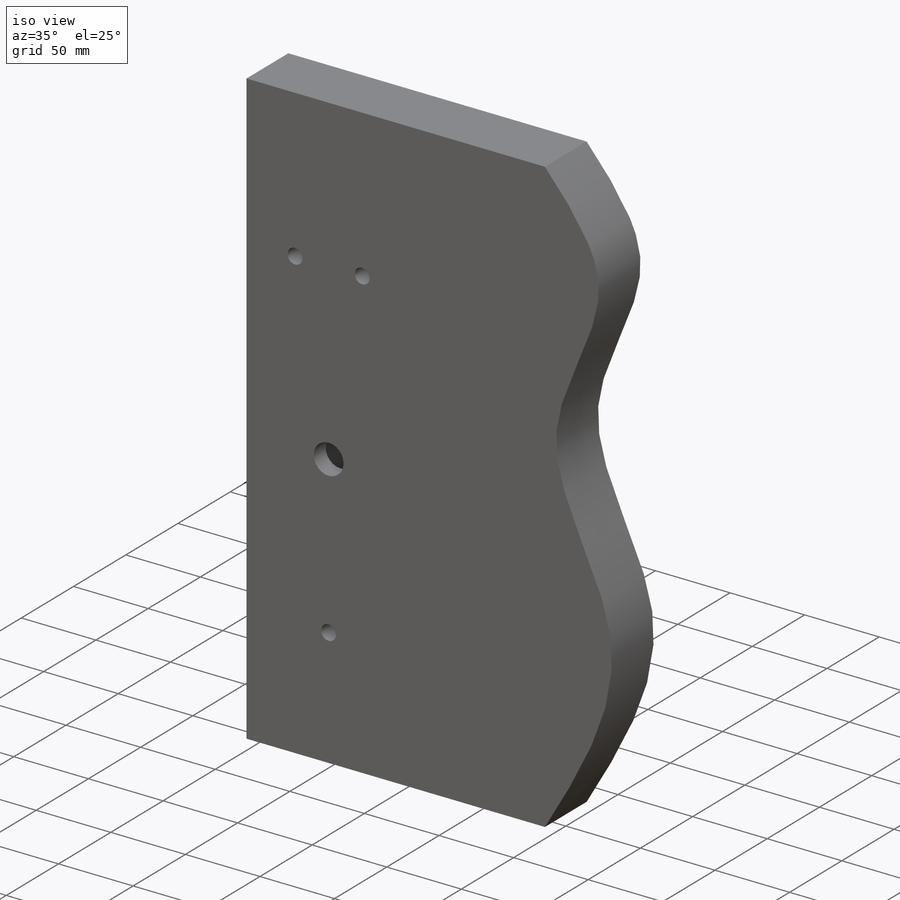
[diagram: iso view]
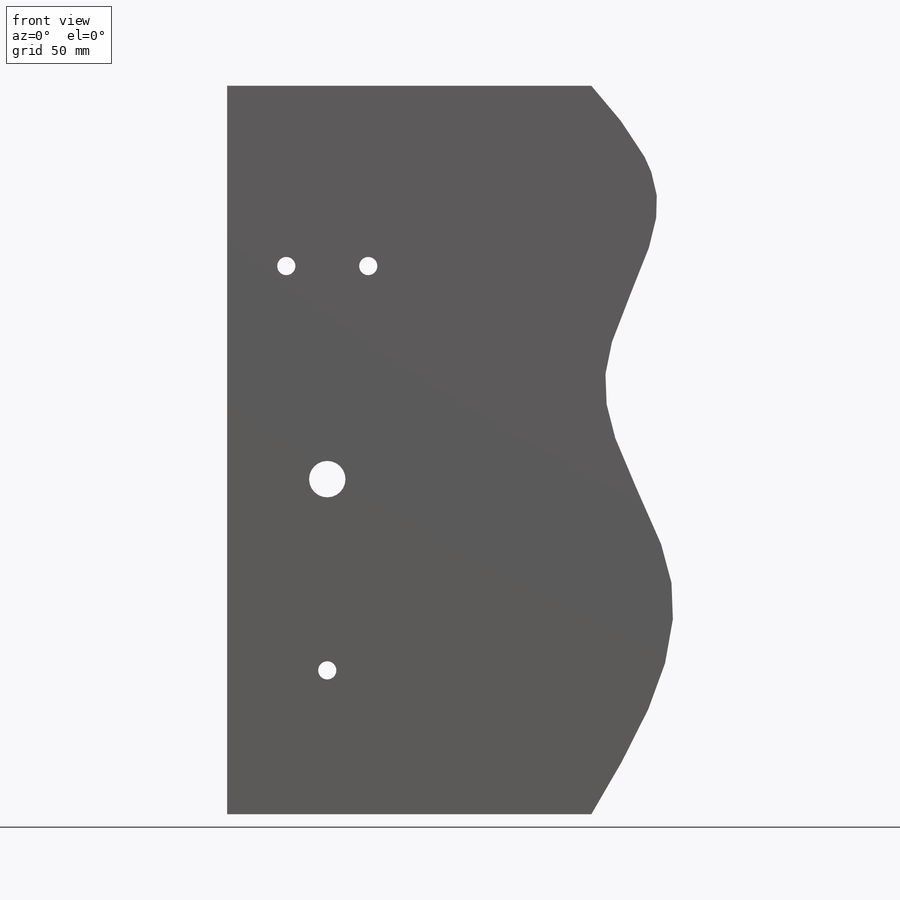
[diagram: front view]
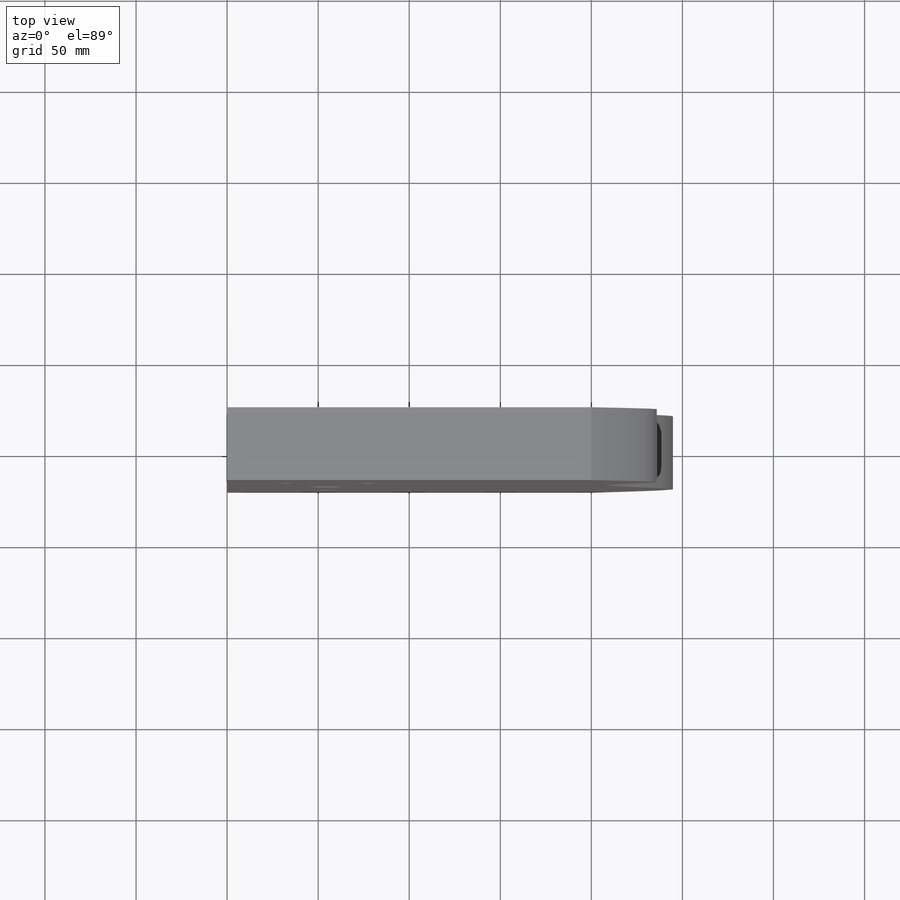
[diagram: top view]
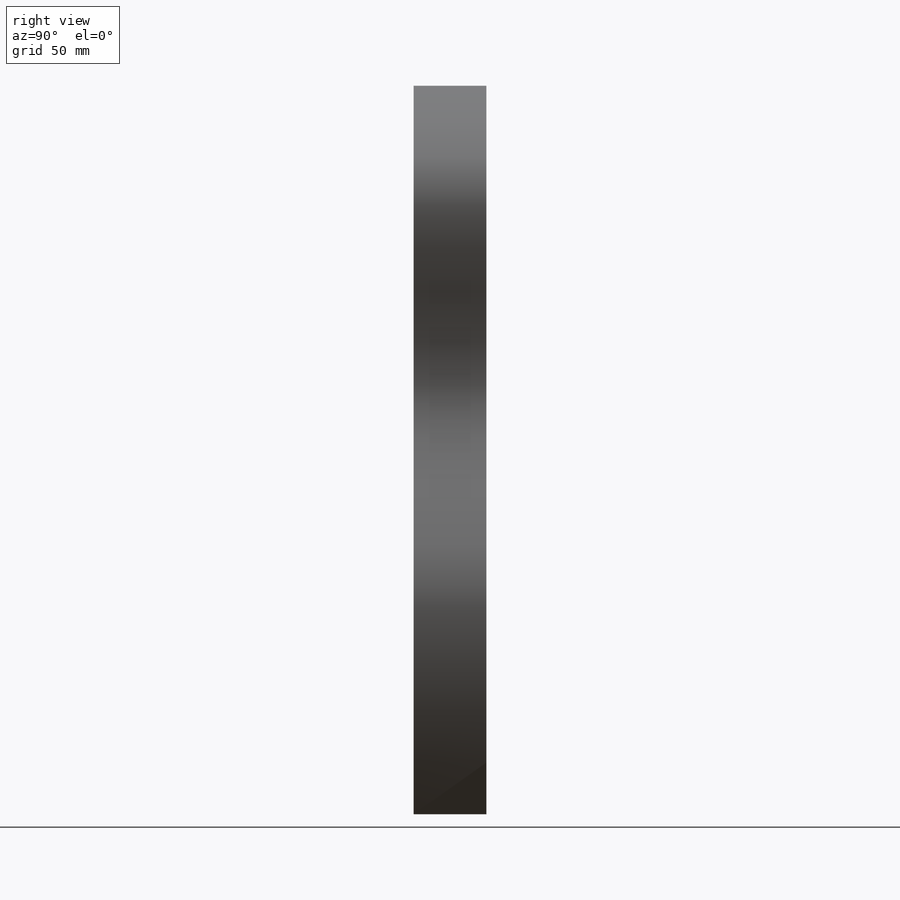
[diagram: right view]
SOLIDWORKS PART (.sldprt)
format: sldprt  version: not decoded by parser v0  size: 563,712 bytes
history: native  units: mm
features: sketch x4, plane x3, cut_extrude x3, material x1, extrude x1 (+12 scaffold rows collapsed)
feature tree (24):
  scaffold x12  (default folders/planes/origin — collapsed)
  material  "Chêne"
  plane  "Face"
  plane  "Dessus"
  plane  "Droite"
  sketch  "Esquisse1"  dims[D1=200.0mm D2=400.0mm]
  extrude  "Extrusion1"  Depth=40mm
  sketch  "Esquisse2"  dims[D1=230.0mm D2=22.0mm D3=120.0mm]
  cut_extrude  "Enlèv. mat.-Extru.1"  Depth=3mm
  sketch  "Esquisse3"  dims[c1.D1=163.0mm c1.D2=77.0mm c1.D3=77.0mm c1.D4=7.0mm c1.D5=7.0mm c1.D6=7.0mm c1.D7=7.0mm c1.D8=3.0mm c2.D2=118.0mm c2.D1=77.0mm c2.D3=77.0mm c2.D4=163.0mm c2.D5=163.0mm c3.D1=163.0mm c3.D2=77.0mm c3.D3=3.0mm c3.D4=153.5mm]
  cut_extrude  "Enlèv. mat.-Extru.2"  Depth=17mm
  sketch  "Esquisse4"  dims[c1.D3=20.0mm c1.D4=12.0mm c1.D5=10.0mm c1.D9=10.0mm c2.D4=10.0mm c2.D1=8.0mm c2.D2=8.0mm c2.D3=212.0mm c3.D4=51.0mm c3.D1=55.0mm c3.D2=216.0mm c3.D6=117.0mm c3.D7=105.0mm c3.D8=22.5mm]
  cut_extrude  "Enlèv. mat.-Extru.3"  [1 undecoded]
decode coverage: 7 of 8 modeling features carry decoded parameters
note: 1 parameter value undecoded
note: suppression state not decoded; provenance and decode notes live in map.json
